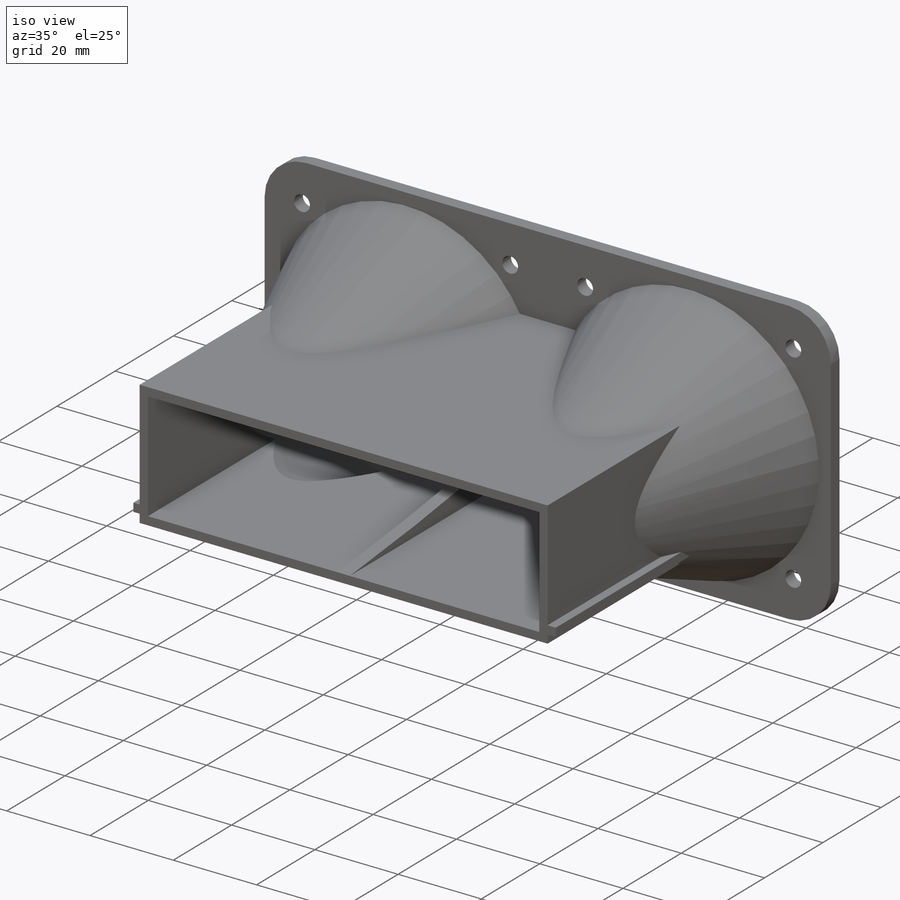
[diagram: iso view]
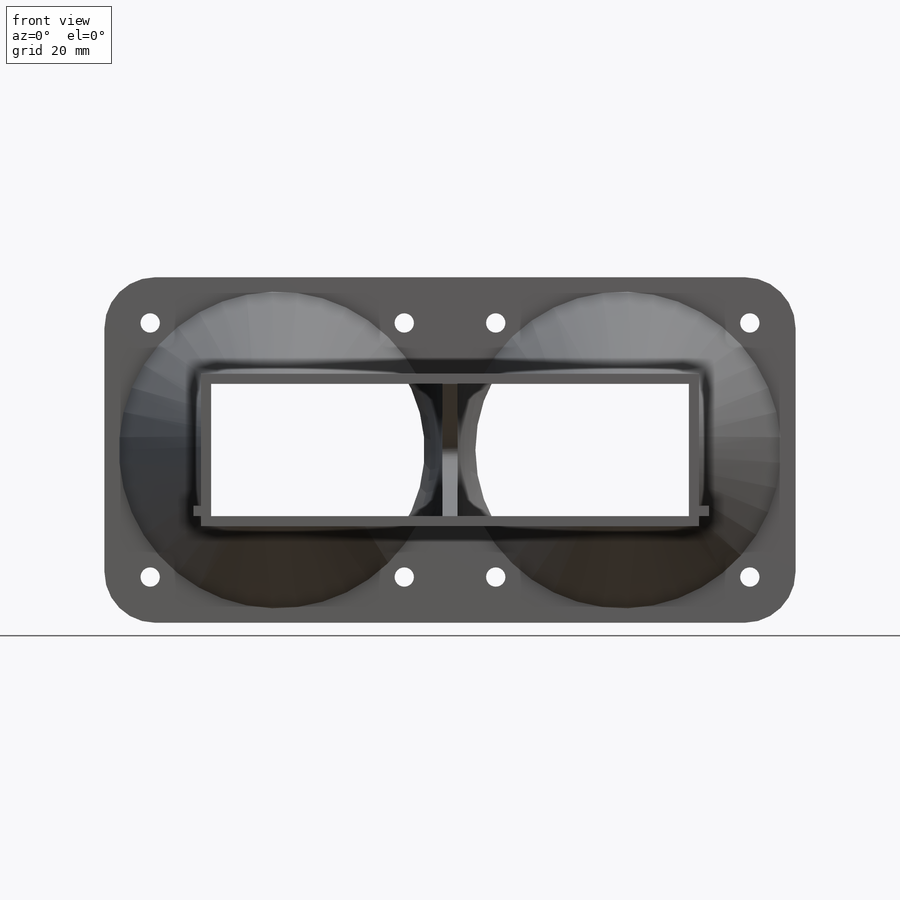
[diagram: front view]
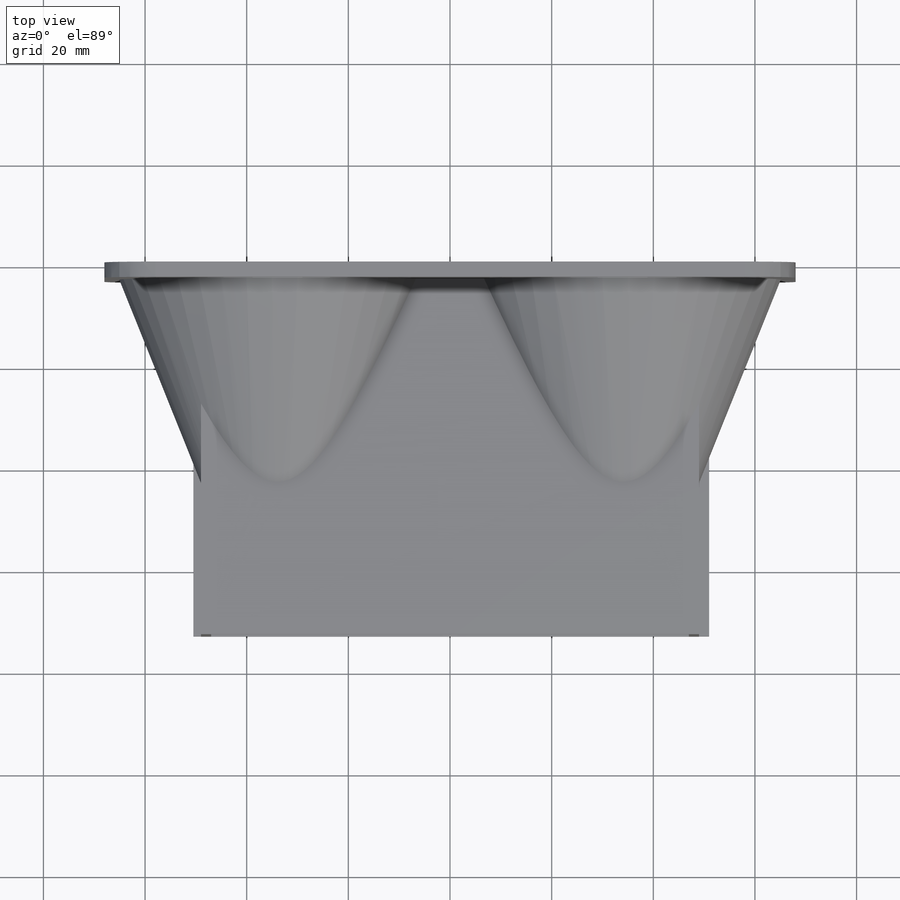
[diagram: top view]
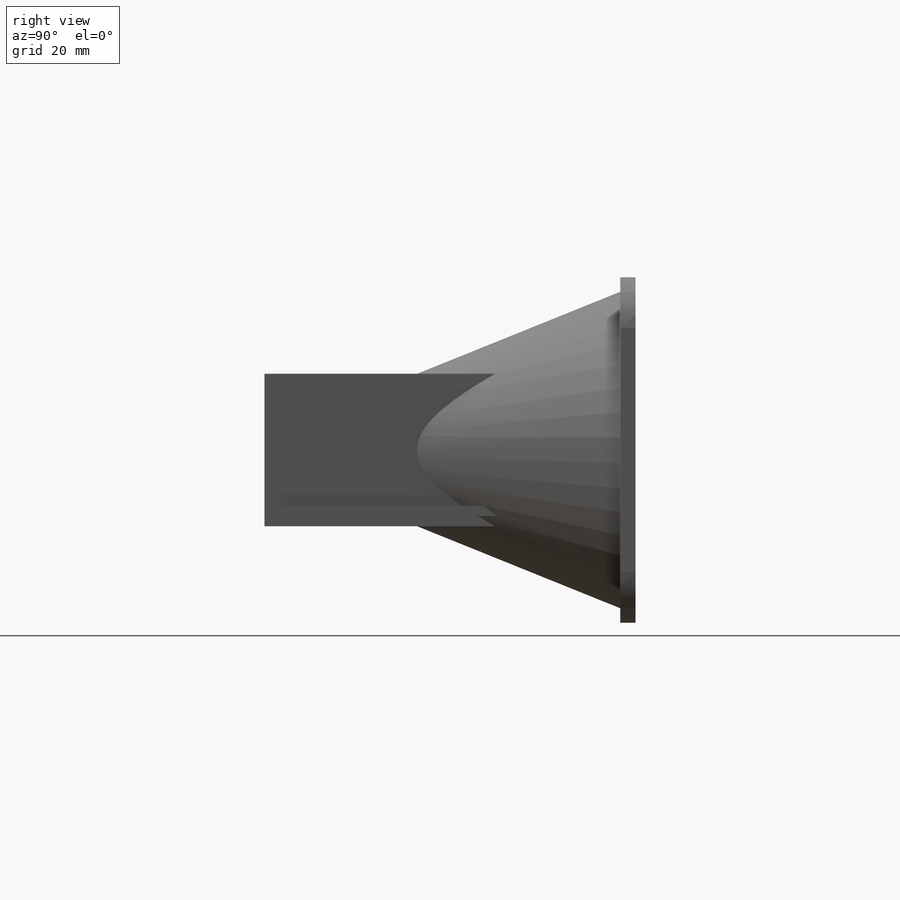
[diagram: right view]
SOLIDWORKS PART (.sldprt)
format: sldprt  version: not decoded by parser v0  size: 463,872 bytes
history: native  units: mm
features: sketch x9, extrude x4, plane x3, cut_extrude x3, revolve x2, fillet x2, material x1 (+13 scaffold rows collapsed)
feature tree (37):
  scaffold x13  (default folders/planes/origin — collapsed)
  material  "Matériau <non spécifié>"
  plane  "Plan de face"
  plane  "Plan de dessus"
  plane  "Plan de droite"
  sketch  "Esquisse1"  dims[c1.D1=58.0mm c1.D2=58.0mm c1.D16=3.8mm c1.D17=3.8mm c1.D18=3.8mm c1.D19=3.8mm c1.D29=3.8mm c1.D30=3.8mm c1.D31=18.0mm c1.D26=3.8mm c2.D31=3.8mm c2.D3=68.0mm c2.D4=34.0mm c2.D5=~56.799236mm c3.D5=45.0deg c3.D6=~43.312604mm c4.D6=90.0deg c4.D7=~43.312604mm c5.D7=90.0deg c5.D8=~40.101728mm c6.D8=90.0deg c6.D9=~42.575867mm c7.D9=90.0deg c7.D10=~45.367594mm c8.D10=45.0deg c8.D11=50.0mm c8.D12=25.0mm c8.D13=50.0mm c8.D14=25.0mm c8.D15=50.0mm c8.D20=34.0mm c8.D21=68.0mm c8.D22=34.0mm c8.D23=34.0mm c8.D24=50.0mm c8.D25=25.0mm c8.D26=50.0mm c8.D27=25.0mm c8.D28=50.0mm c9.D27=50.0mm c9.D28=50.0mm]
  extrude  "Extrusion1"  Depth=3mm
  sketch  "Esquisse2"  dims[c1.D1=34.0mm c1.D2=98.0mm c1.D3=49.0mm c1.D4=25.0mm c1.D5=2.0mm c2.D4=28.0mm c2.D6=49.0mm c2.D7=40.0mm c2.D1=34.0mm c2.D2=29.0mm c2.D3=30.0mm c3.D2=58.0mm]
  revolve  "Révolution1"  Angle=360deg
  sketch  "Esquisse3"  dims[D1=34.0mm D2=2.0mm D3=58.0mm D4=40.0mm D5=30.0mm]
  revolve  "Révolution2"  Angle=360deg
  sketch  "Esquisse4"  dims[D1=98.0mm D2=30.0mm D3=15.0mm D4=49.0mm D5=2.0mm D6=2.0mm D7=2.0mm D8=2.0mm]
  extrude  "Extrusion2"  Depth=30mm
  sketch  "Esquisse5"
  cut_extrude  "Extrusion3"  Depth=40mm
  sketch  "Esquisse6"
  cut_extrude  "Extrusion4"  Depth=40mm
  sketch  "Esquisse7"  dims[D1=2.0mm D2=26.0mm D3=2.0mm D4=94.0mm]
  cut_extrude  "Extrusion5"  Depth=70mm
  sketch  "Esquisse8"  dims[D1=1.5mm D2=2.0mm D3=2.0mm D4=2.0mm]
  extrude  "Extrusion6"  [1 undecoded]
  fillet  "Congé1"  Radius=10mm
  sketch  "Esquisse9"  dims[D1=11.0mm D2=0.0mm]
  extrude  "Extrusion7"  Depth=1.5mm
  fillet  "Congé7"  Radius=12mm
decode coverage: 17 of 20 modeling features carry decoded parameters
note: ~ marks probable driven/reference dimensions
note: 1 parameter value undecoded
note: suppression state not decoded; provenance and decode notes live in map.json
